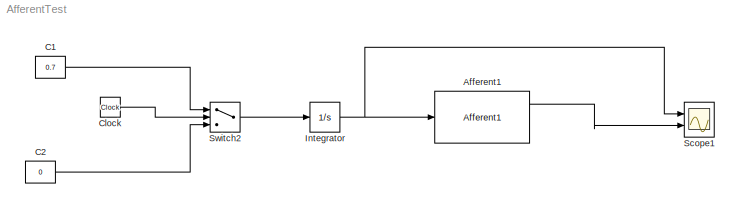
MODEL AfferentTest
KIND model
BLOCK [Reference] Afferent1  REF=NeuroModelerLibrary/Simple Cells/Afferent1
  ExpCoeff = 0.001
  IncCoeff = 0.999
  Ports = [1, 3]
  SID = 20
  SourceBlock = NeuroModelerLibrary/Simple Cells/Afferent1
BLOCK [Constant] C1
  SID = 11
  Value = 0.7
BLOCK [Constant] C2
  SID = 12
  Value = 0
BLOCK [Clock] Clock
  SID = 13
BLOCK [Integrator] Integrator
  Ports = [1, 1]
  SID = 14
BLOCK [Scope] Scope1
  DataFormat = StructureWithTime
  Floating = off
  MaxDataPoints = 500000
  NumInputPorts = 2
  Ports = [2]
  SID = 15
  SampleTime = 0
  ShowLegends = off
  YMax = 5.5~1
  YMin = 0~0
  ZoomMode = xonly
BLOCK [Switch] Switch2
  SID = 16
  Threshold = 2
LINE Afferent1:1 -> Scope1:2
LINE C1:1 -> Switch2:1
LINE C2:1 -> Switch2:3
LINE Clock:1 -> Switch2:2
NET Integrator:1 -> Afferent1:1, Scope1:1
LINE Switch2:1 -> Integrator:1
note: NET lines group one-source signal fan-out (src -> all destinations, sorted); 1:1 wires keep LINE
